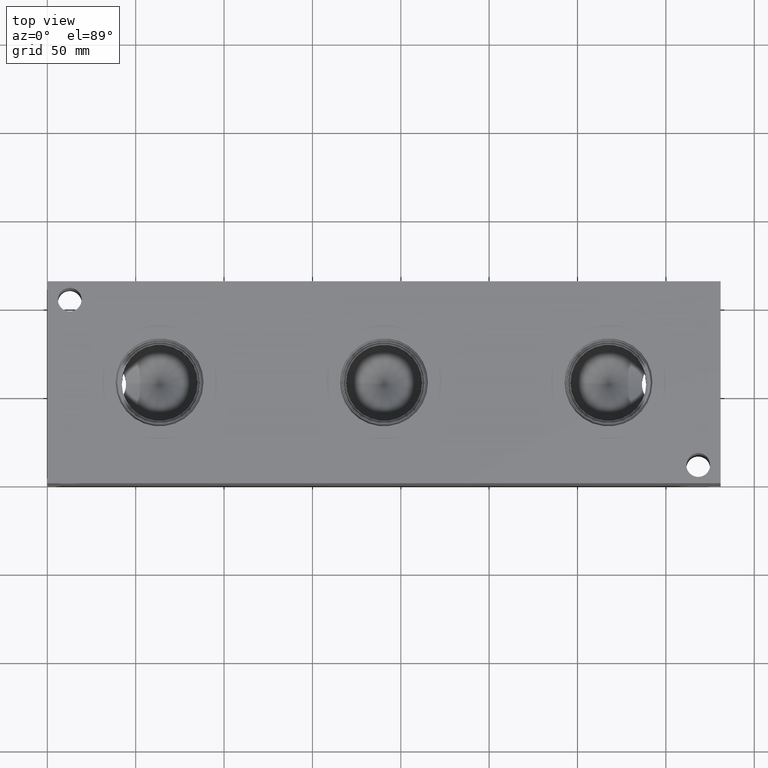
[diagram: clean part render]
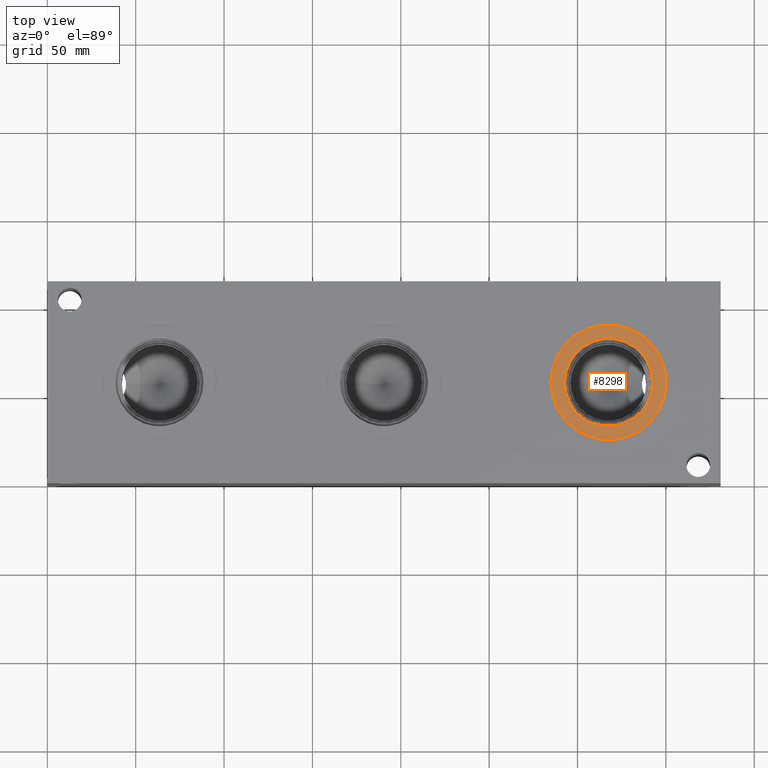
[diagram: same view with one face highlighted and labeled with its STEP entity id]
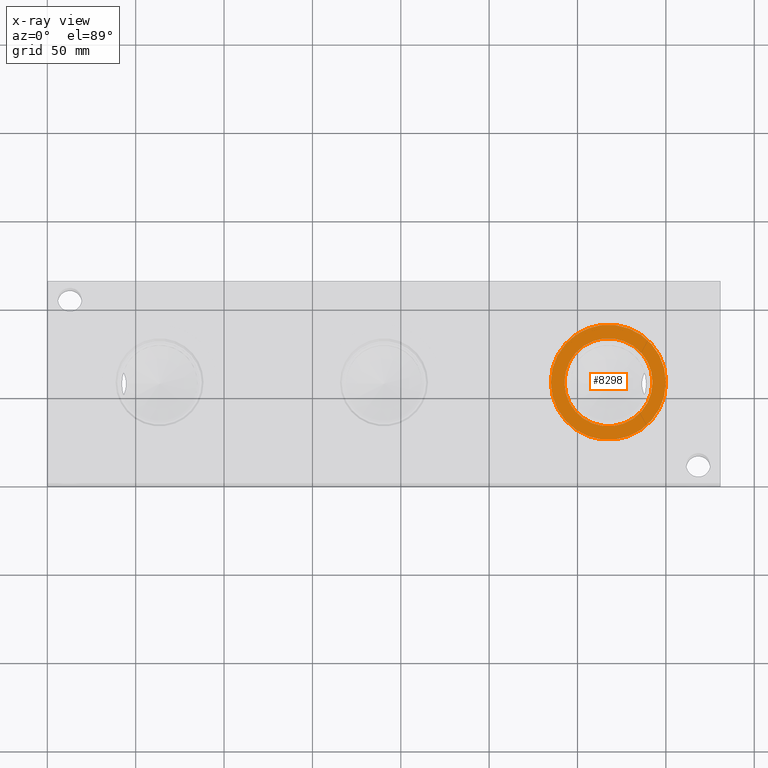
[diagram: x-ray of the same camera — body ghosted, the highlighted face saturated]
A machine part, top view. The second image highlights one B-rep face of the part: STEP entity #8298.
The next image is the same camera in x-ray: the body ghosted, the highlighted face saturated — about 0% of this face is hidden behind the body in this view.
In plain terms, the highlighted planar face has unit normal (0, 0, -1).
Its self-contained STEP definition (entity closure, byte-faithful):
#176=CIRCLE('',#8720,32.5628);
#177=CIRCLE('',#8721,32.5628);
#178=CIRCLE('',#8723,24.9047);
#179=CIRCLE('',#8724,24.9047);
#304=FACE_BOUND('',#1462,.T.);
#999=FACE_OUTER_BOUND('',#1461,.T.);
#1461=EDGE_LOOP('',(#7048,#7049));
#1462=EDGE_LOOP('',(#7050,#7051));
#3787=VERTEX_POINT('',#14033);
#3788=VERTEX_POINT('',#14035);
#3789=VERTEX_POINT('',#14039);
#3790=VERTEX_POINT('',#14040);
#4903=EDGE_CURVE('',#3787,#3788,#176,.T.);
#4904=EDGE_CURVE('',#3788,#3787,#177,.T.);
#4905=EDGE_CURVE('',#3789,#3790,#178,.T.);
#4906=EDGE_CURVE('',#3790,#3789,#179,.T.);
#7048=ORIENTED_EDGE('',*,*,#4904,.F.);
#7049=ORIENTED_EDGE('',*,*,#4903,.F.);
#7050=ORIENTED_EDGE('',*,*,#4905,.T.);
#7051=ORIENTED_EDGE('',*,*,#4906,.T.);
#7603=PLANE('',#8722);
#8298=ADVANCED_FACE('',(#999,#304),#7603,.F.);
#8720=AXIS2_PLACEMENT_3D('',#14036,#10297,#10298);
#8721=AXIS2_PLACEMENT_3D('',#14037,#10299,#10300);
#8722=AXIS2_PLACEMENT_3D('',#14038,#10301,#10302);
#8723=AXIS2_PLACEMENT_3D('',#14041,#10303,#10304);
#8724=AXIS2_PLACEMENT_3D('',#14042,#10305,#10306);
#10297=DIRECTION('center_axis',(0.,0.,-1.));
#10298=DIRECTION('ref_axis',(1.,0.,0.));
#10299=DIRECTION('center_axis',(0.,0.,-1.));
#10300=DIRECTION('ref_axis',(1.,0.,0.));
#10301=DIRECTION('center_axis',(0.,0.,-1.));
#10302=DIRECTION('ref_axis',(-1.,0.,0.));
#10303=DIRECTION('center_axis',(0.,0.,-1.));
#10304=DIRECTION('ref_axis',(1.,0.,0.));
#10305=DIRECTION('center_axis',(0.,0.,-1.));
#10306=DIRECTION('ref_axis',(1.,0.,0.));
#14033=CARTESIAN_POINT('',(284.9372,57.15,113.5126));
#14035=CARTESIAN_POINT('',(350.0628,57.15,113.5126));
#14036=CARTESIAN_POINT('Origin',(317.5,57.15,113.5126));
#14037=CARTESIAN_POINT('Origin',(317.5,57.15,113.5126));
#14038=CARTESIAN_POINT('Origin',(342.4047,57.15,113.5126));
#14039=CARTESIAN_POINT('',(342.4047,57.15,113.5126));
#14040=CARTESIAN_POINT('',(292.5953,57.15,113.5126));
#14041=CARTESIAN_POINT('Origin',(317.5,57.15,113.5126));
#14042=CARTESIAN_POINT('Origin',(317.5,57.15,113.5126));